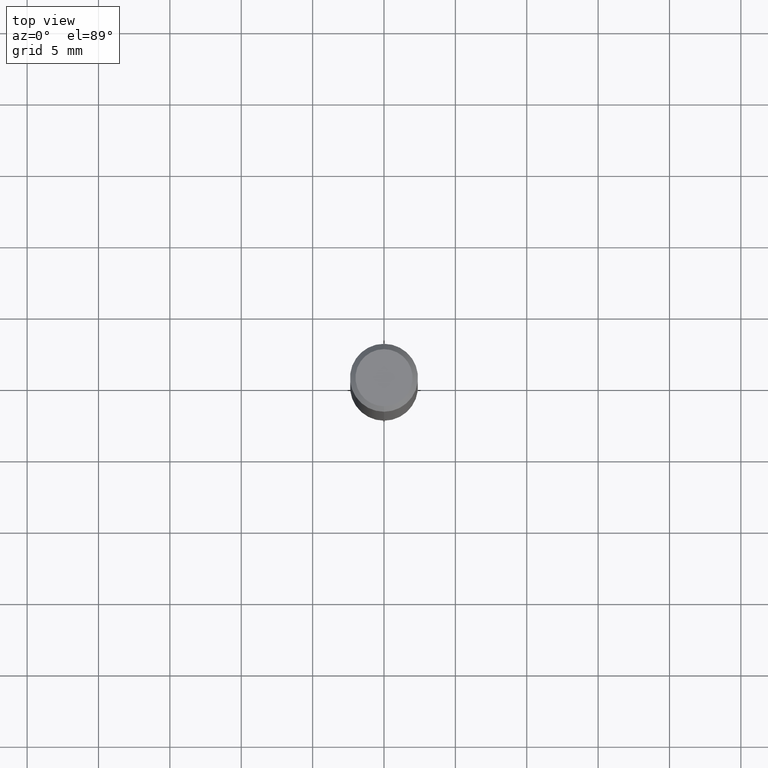
[diagram: clean part render]
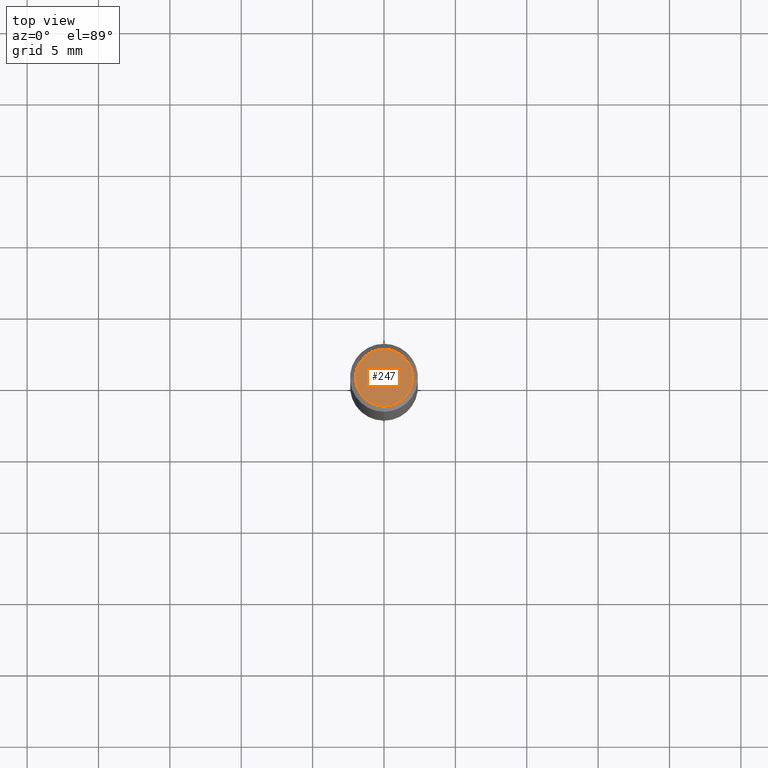
[diagram: same view with one face highlighted and labeled with its STEP entity id]
A machine part, top view. The second image highlights one B-rep face of the part: STEP entity #247.
In plain terms, the highlighted planar face has unit normal (0, -0, -1).
Its self-contained STEP definition (entity closure, byte-faithful):
#5 = AXIS2_PLACEMENT_3D ( 'NONE', #29, #496, #99 ) ;
#29 = CARTESIAN_POINT ( 'NONE',  ( 5.499083108677934443E-16, 0.07875000000000001443, -3.625853067319560965E-16 ) ) ;
#45 = CARTESIAN_POINT ( 'NONE',  ( 4.288182108997796267E-45, -6.120871985901321353E-31, -1.753304780092744197E-16 ) ) ;
#60 = DIRECTION ( 'NONE',  ( -6.982962677686264344E-15, -1.000000000000000000, 3.491048479077063976E-15 ) ) ;
#80 = EDGE_CURVE ( 'NONE', #120, #392, #123, .T. ) ;
#99 = DIRECTION ( 'NONE',  ( 6.982962677686265922E-15, 1.000000000000000000, -3.491048479077063581E-15 ) ) ;
#120 = VERTEX_POINT ( 'NONE', #258 ) ;
#123 = CIRCLE ( 'NONE', #265, 0.07875000000000001443 ) ;
#176 = CARTESIAN_POINT ( 'NONE',  ( 4.288182108997796267E-45, -6.120871985901321353E-31, -1.753304780092744197E-16 ) ) ;
#177 = ORIENTED_EDGE ( 'NONE', *, *, #80, .T. ) ;
#189 = PLANE ( 'NONE',  #5 ) ;
#233 = CARTESIAN_POINT ( 'NONE',  ( 6.022805309504406221E-16, 0.07875000000000001443, -4.502505457365932201E-16 ) ) ;
#247 = ADVANCED_FACE ( 'NONE', ( #253 ), #189, .F. ) ;
#253 = FACE_OUTER_BOUND ( 'NONE', #354, .T. ) ;
#258 = CARTESIAN_POINT ( 'NONE',  ( -5.917179523077944868E-16, -0.07875000000000001443, 9.958958971804440537E-17 ) ) ;
#265 = AXIS2_PLACEMENT_3D ( 'NONE', #176, #330, #60 ) ;
#307 = EDGE_CURVE ( 'NONE', #392, #120, #430, .T. ) ;
#309 = ORIENTED_EDGE ( 'NONE', *, *, #307, .T. ) ;
#330 = DIRECTION ( 'NONE',  ( -2.445771070544258513E-29, 3.491048479077063976E-15, 1.000000000000000000 ) ) ;
#349 = DIRECTION ( 'NONE',  ( -6.982962677686264344E-15, -1.000000000000000000, 3.491048479077063976E-15 ) ) ;
#354 = EDGE_LOOP ( 'NONE', ( #309, #177 ) ) ;
#392 = VERTEX_POINT ( 'NONE', #233 ) ;
#430 = CIRCLE ( 'NONE', #471, 0.07875000000000001443 ) ;
#438 = DIRECTION ( 'NONE',  ( -2.445771070544258513E-29, 3.491048479077063976E-15, 1.000000000000000000 ) ) ;
#471 = AXIS2_PLACEMENT_3D ( 'NONE', #45, #438, #349 ) ;
#496 = DIRECTION ( 'NONE',  ( 2.445771070544258513E-29, -3.491048479077063581E-15, -1.000000000000000000 ) ) ;